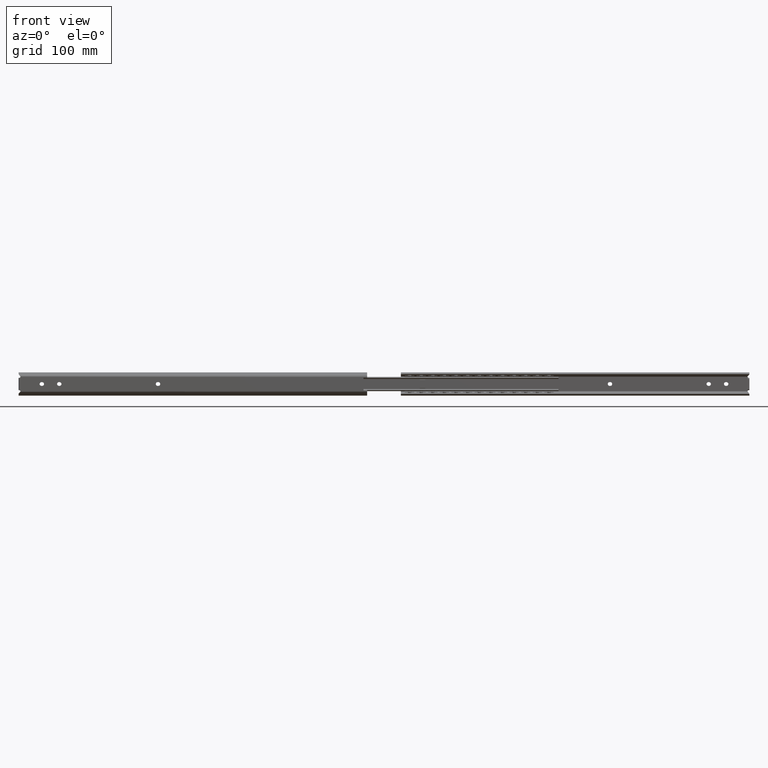
[diagram: clean part render]
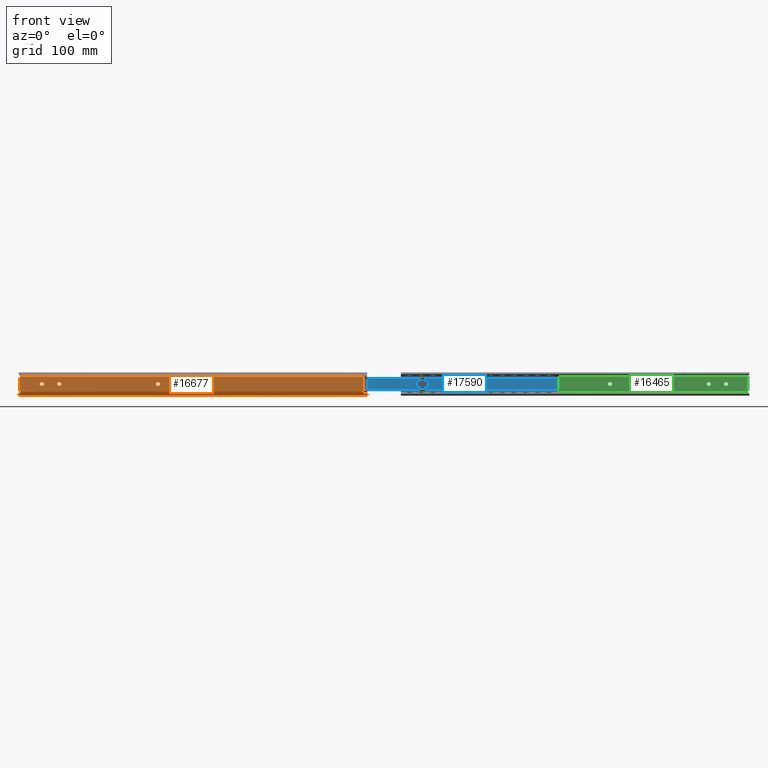
[diagram: same view with three faces highlighted in distinct colors, each labeled with its STEP entity id]
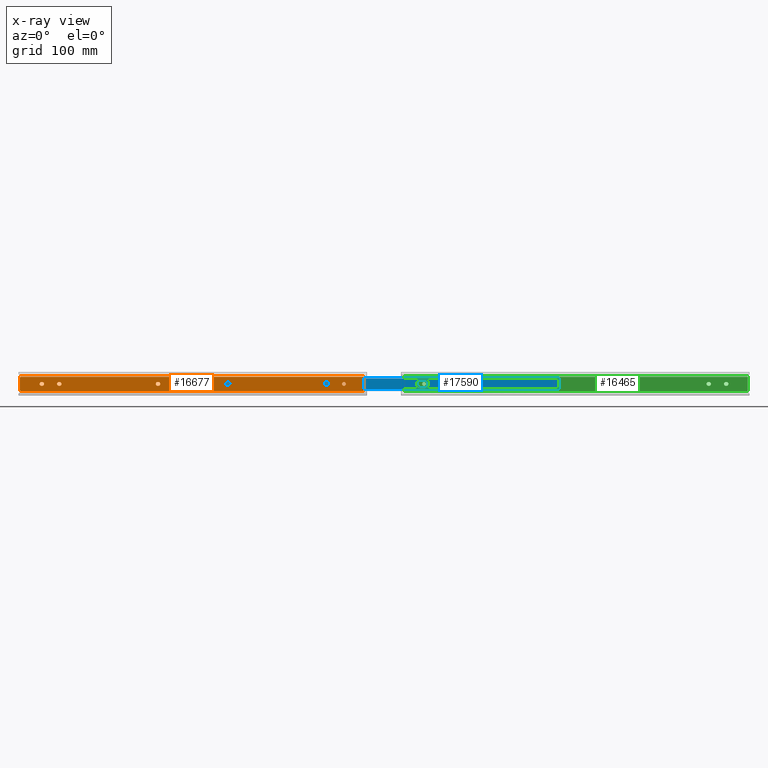
[diagram: x-ray of the same camera — body ghosted, the three highlighted faces saturated]
A machine part, front view with three faces highlighted in distinct colors.
The next image is the same camera in x-ray (body ghosted, the three faces saturated) — at least one of them is partly hidden behind the body in this view.
Their STEP definitions:

[orange] entity #16677 — the highlighted face is a freeform B-spline surface patch.
#13548=CARTESIAN_POINT('',(21.597015677470502,5.204170E-017,-0.097677663329138));
#13549=VERTEX_POINT('',#13548);
#13555=CARTESIAN_POINT('',(20.0,0.0,-1.600000000000000));
#13556=VERTEX_POINT('',#13555);
#13557=CARTESIAN_POINT('',(20.0,0.0,-1.600000000000000));
#13558=CARTESIAN_POINT('',(21.505129706910562,0.0,-1.600000000000000));
#13559=CARTESIAN_POINT('',(21.597015677470502,5.204170E-017,-0.097677663329138));
#13567=(BOUNDED_CURVE()B_SPLINE_CURVE(2,(#13557,#13558,#13559),.UNSPECIFIED.,.F.,.U.)B_SPLINE_CURVE_WITH_KNOTS((3,3),(0.500000000000000,0.739332962226115),.UNSPECIFIED.)CURVE()GEOMETRIC_REPRESENTATION_ITEM()RATIONAL_B_SPLINE_CURVE((1.0,0.719603993301739,0.976072041639226))REPRESENTATION_ITEM(''));
#13568=EDGE_CURVE('',#13556,#13549,#13567,.T.);
#13570=CARTESIAN_POINT('',(18.411184757819200,-2.839428E-017,0.188854775459773));
#13571=VERTEX_POINT('',#13570);
#13572=CARTESIAN_POINT('',(18.411184757819200,-2.839428E-017,0.188854775459773));
#13573=CARTESIAN_POINT('',(18.399999999999999,0.0,0.094758591452110));
#13574=CARTESIAN_POINT('',(18.399999999999999,0.0,0.0));
#13575=CARTESIAN_POINT('',(18.399999999999991,0.0,-1.600000000000000));
#13576=CARTESIAN_POINT('',(20.0,0.0,-1.600000000000000));
#13584=(BOUNDED_CURVE()B_SPLINE_CURVE(2,(#13572,#13573,#13574,#13575,#13576),.UNSPECIFIED.,.F.,.U.)B_SPLINE_CURVE_WITH_KNOTS((3,2,3),(0.229562473513738,0.250000000000000,0.500000000000000),.UNSPECIFIED.)CURVE()GEOMETRIC_REPRESENTATION_ITEM()RATIONAL_B_SPLINE_CURVE((0.956026754184150,0.976055948331414,1.0,0.707106781186548,1.0))REPRESENTATION_ITEM(''));
#13585=EDGE_CURVE('',#13571,#13556,#13584,.T.);
#13629=CARTESIAN_POINT('',(20.0,0.0,1.600000000000000));
#13630=VERTEX_POINT('',#13629);
#13631=CARTESIAN_POINT('',(20.0,0.0,1.600000000000000));
#13632=CARTESIAN_POINT('',(18.578920758493954,0.0,1.599999999999999));
#13633=CARTESIAN_POINT('',(18.411184757819203,-2.839428E-017,0.188854775459773));
#13641=(BOUNDED_CURVE()B_SPLINE_CURVE(2,(#13631,#13632,#13633),.UNSPECIFIED.,.F.,.U.)B_SPLINE_CURVE_WITH_KNOTS((3,3),(0.0,0.229562473513738),.UNSPECIFIED.)CURVE()GEOMETRIC_REPRESENTATION_ITEM()RATIONAL_B_SPLINE_CURVE((1.0,0.731050832855133,0.956026754184150))REPRESENTATION_ITEM(''));
#13642=EDGE_CURVE('',#13630,#13571,#13641,.T.);
#13644=CARTESIAN_POINT('',(21.597015677470502,5.204170E-017,-0.097677663329138));
#13645=CARTESIAN_POINT('',(21.600000000000005,0.0,-0.048884421351315));
#13646=CARTESIAN_POINT('',(21.600000000000001,0.0,0.0));
#13647=CARTESIAN_POINT('',(21.600000000000005,0.0,1.600000000000000));
#13648=CARTESIAN_POINT('',(20.0,0.0,1.600000000000000));
#13656=(BOUNDED_CURVE()B_SPLINE_CURVE(2,(#13644,#13645,#13646,#13647,#13648),.UNSPECIFIED.,.F.,.U.)B_SPLINE_CURVE_WITH_KNOTS((3,2,3),(0.739332962226115,0.750000000000000,1.0),.UNSPECIFIED.)CURVE()GEOMETRIC_REPRESENTATION_ITEM()RATIONAL_B_SPLINE_CURVE((0.976072041639224,0.987502787884808,1.0,0.707106781186548,1.0))REPRESENTATION_ITEM(''));
#13657=EDGE_CURVE('',#13549,#13630,#13656,.T.);
#13692=CARTESIAN_POINT('',(35.299999999999997,8.526513E-014,-1.600000000000080));
#13693=VERTEX_POINT('',#13692);
#13699=CARTESIAN_POINT('',(34.700000000000003,0.0,-1.600000000000000));
#13700=VERTEX_POINT('',#13699);
#13701=CARTESIAN_POINT('',(34.700000000000003,0.0,-1.600000000000000));
#13702=CARTESIAN_POINT('',(35.299999999999997,8.526513E-014,-1.600000000000080));
#13703=QUASI_UNIFORM_CURVE('',1,(#13701,#13702),.UNSPECIFIED.,.F.,.U.);
#13704=EDGE_CURVE('',#13700,#13693,#13703,.T.);
#13750=CARTESIAN_POINT('',(34.700000000000003,0.0,1.600000000000025));
#13751=VERTEX_POINT('',#13750);
#13752=CARTESIAN_POINT('',(34.700000000000003,0.0,1.600000000000000));
#13753=CARTESIAN_POINT('',(33.100000000000009,0.0,1.600000000000000));
#13754=CARTESIAN_POINT('',(33.100000000000001,0.0,0.0));
#13755=CARTESIAN_POINT('',(33.100000000000009,0.0,-1.600000000000000));
#13756=CARTESIAN_POINT('',(34.700000000000003,0.0,-1.600000000000000));
#13764=(BOUNDED_CURVE()B_SPLINE_CURVE(2,(#13752,#13753,#13754,#13755,#13756),.UNSPECIFIED.,.F.,.U.)B_SPLINE_CURVE_WITH_KNOTS((3,2,3),(0.0,0.500000000000000,1.0),.UNSPECIFIED.)CURVE()GEOMETRIC_REPRESENTATION_ITEM()RATIONAL_B_SPLINE_CURVE((1.0,0.707106781186548,1.0,0.707106781186548,1.0))REPRESENTATION_ITEM(''));
#13765=EDGE_CURVE('',#13751,#13700,#13764,.T.);
#13788=CARTESIAN_POINT('',(35.299999999999997,0.0,1.600000000000025));
#13789=VERTEX_POINT('',#13788);
#13790=CARTESIAN_POINT('',(35.299999999999997,0.0,1.600000000000025));
#13791=CARTESIAN_POINT('',(34.700000000000003,0.0,1.600000000000025));
#13792=QUASI_UNIFORM_CURVE('',1,(#13790,#13791),.UNSPECIFIED.,.F.,.U.);
#13793=EDGE_CURVE('',#13789,#13751,#13792,.T.);
#13837=CARTESIAN_POINT('',(35.299999999999997,8.526513E-014,-1.600000000000080));
#13838=CARTESIAN_POINT('',(36.900000000000006,0.0,-1.600000000000000));
#13839=CARTESIAN_POINT('',(36.899999999999999,0.0,0.0));
#13840=CARTESIAN_POINT('',(36.900000000000006,0.0,1.600000000000000));
#13841=CARTESIAN_POINT('',(35.299999999999997,0.0,1.600000000000000));
#13849=(BOUNDED_CURVE()B_SPLINE_CURVE(2,(#13837,#13838,#13839,#13840,#13841),.UNSPECIFIED.,.F.,.U.)B_SPLINE_CURVE_WITH_KNOTS((3,2,3),(0.0,0.500000000000000,1.0),.UNSPECIFIED.)CURVE()GEOMETRIC_REPRESENTATION_ITEM()RATIONAL_B_SPLINE_CURVE((1.0,0.707106781186548,1.0,0.707106781186548,1.0))REPRESENTATION_ITEM(''));
#13850=EDGE_CURVE('',#13693,#13789,#13849,.T.);
#13870=CARTESIAN_POINT('',(120.300000000000000,8.526513E-014,-1.600000000000080));
#13871=VERTEX_POINT('',#13870);
#13877=CARTESIAN_POINT('',(119.700000000000000,0.0,-1.600000000000000));
#13878=VERTEX_POINT('',#13877);
#13879=CARTESIAN_POINT('',(119.700000000000000,0.0,-1.600000000000000));
#13880=CARTESIAN_POINT('',(120.300000000000000,8.526513E-014,-1.600000000000080));
#13881=QUASI_UNIFORM_CURVE('',1,(#13879,#13880),.UNSPECIFIED.,.F.,.U.);
#13882=EDGE_CURVE('',#13878,#13871,#13881,.T.);
#13928=CARTESIAN_POINT('',(119.700000000000000,0.0,1.600000000000025));
#13929=VERTEX_POINT('',#13928);
#13930=CARTESIAN_POINT('',(119.700000000000000,0.0,1.600000000000000));
#13931=CARTESIAN_POINT('',(118.099999999999980,0.0,1.600000000000000));
#13932=CARTESIAN_POINT('',(118.099999999999990,0.0,0.0));
#13933=CARTESIAN_POINT('',(118.099999999999980,0.0,-1.600000000000000));
#13934=CARTESIAN_POINT('',(119.700000000000000,0.0,-1.600000000000000));
#13942=(BOUNDED_CURVE()B_SPLINE_CURVE(2,(#13930,#13931,#13932,#13933,#13934),.UNSPECIFIED.,.F.,.U.)B_SPLINE_CURVE_WITH_KNOTS((3,2,3),(0.0,0.500000000000000,1.0),.UNSPECIFIED.)CURVE()GEOMETRIC_REPRESENTATION_ITEM()RATIONAL_B_SPLINE_CURVE((1.0,0.707106781186548,1.0,0.707106781186548,1.0))REPRESENTATION_ITEM(''));
#13943=EDGE_CURVE('',#13929,#13878,#13942,.T.);
#13966=CARTESIAN_POINT('',(120.300000000000000,0.0,1.600000000000025));
#13967=VERTEX_POINT('',#13966);
#13968=CARTESIAN_POINT('',(120.300000000000000,0.0,1.600000000000025));
#13969=CARTESIAN_POINT('',(119.700000000000000,0.0,1.600000000000025));
#13970=QUASI_UNIFORM_CURVE('',1,(#13968,#13969),.UNSPECIFIED.,.F.,.U.);
#13971=EDGE_CURVE('',#13967,#13929,#13970,.T.);
#14015=CARTESIAN_POINT('',(120.300000000000000,0.0,-1.600000000000000));
#14016=CARTESIAN_POINT('',(121.900000000000010,0.0,-1.600000000000000));
#14017=CARTESIAN_POINT('',(121.900000000000010,0.0,0.0));
#14018=CARTESIAN_POINT('',(121.900000000000010,0.0,1.600000000000000));
#14019=CARTESIAN_POINT('',(120.300000000000000,0.0,1.600000000000000));
#14027=(BOUNDED_CURVE()B_SPLINE_CURVE(2,(#14015,#14016,#14017,#14018,#14019),.UNSPECIFIED.,.F.,.U.)B_SPLINE_CURVE_WITH_KNOTS((3,2,3),(0.0,0.500000000000000,1.0),.UNSPECIFIED.)CURVE()GEOMETRIC_REPRESENTATION_ITEM()RATIONAL_B_SPLINE_CURVE((1.0,0.707106781186548,1.0,0.707106781186548,1.0))REPRESENTATION_ITEM(''));
#14028=EDGE_CURVE('',#13871,#13967,#14027,.T.);
#14048=CARTESIAN_POINT('',(180.300000000000010,8.526513E-014,-1.600000000000000));
#14049=VERTEX_POINT('',#14048);
#14055=CARTESIAN_POINT('',(179.699999999999990,0.0,-1.600000000000000));
#14056=VERTEX_POINT('',#14055);
#14057=CARTESIAN_POINT('',(179.699999999999990,0.0,-1.600000000000000));
#14058=CARTESIAN_POINT('',(180.300000000000010,8.526513E-014,-1.600000000000000));
#14059=QUASI_UNIFORM_CURVE('',1,(#14057,#14058),.UNSPECIFIED.,.F.,.U.);
#14060=EDGE_CURVE('',#14056,#14049,#14059,.T.);
#14106=CARTESIAN_POINT('',(179.699999999999990,0.0,1.599999999999910));
#14107=VERTEX_POINT('',#14106);
#14108=CARTESIAN_POINT('',(179.699999999999990,0.0,1.600000000000000));
#14109=CARTESIAN_POINT('',(178.099999999999970,0.0,1.600000000000000));
#14110=CARTESIAN_POINT('',(178.099999999999990,0.0,0.0));
#14111=CARTESIAN_POINT('',(178.099999999999970,0.0,-1.600000000000000));
#14112=CARTESIAN_POINT('',(179.699999999999990,0.0,-1.600000000000000));
#14120=(BOUNDED_CURVE()B_SPLINE_CURVE(2,(#14108,#14109,#14110,#14111,#14112),.UNSPECIFIED.,.F.,.U.)B_SPLINE_CURVE_WITH_KNOTS((3,2,3),(0.0,0.500000000000000,1.0),.UNSPECIFIED.)CURVE()GEOMETRIC_REPRESENTATION_ITEM()RATIONAL_B_SPLINE_CURVE((1.0,0.707106781186548,1.0,0.707106781186548,1.0))REPRESENTATION_ITEM(''));
#14121=EDGE_CURVE('',#14107,#14056,#14120,.T.);
#14144=CARTESIAN_POINT('',(180.300000000000010,0.0,1.599999999999910));
#14145=VERTEX_POINT('',#14144);
#14146=CARTESIAN_POINT('',(180.300000000000010,0.0,1.599999999999910));
#14147=CARTESIAN_POINT('',(179.699999999999990,0.0,1.599999999999910));
#14148=QUASI_UNIFORM_CURVE('',1,(#14146,#14147),.UNSPECIFIED.,.F.,.U.);
#14149=EDGE_CURVE('',#14145,#14107,#14148,.T.);
#14193=CARTESIAN_POINT('',(180.300000000000010,0.0,-1.600000000000000));
#14194=CARTESIAN_POINT('',(181.899999999999980,0.0,-1.600000000000000));
#14195=CARTESIAN_POINT('',(181.900000000000010,0.0,0.0));
#14196=CARTESIAN_POINT('',(181.899999999999980,0.0,1.600000000000000));
#14197=CARTESIAN_POINT('',(180.300000000000010,0.0,1.600000000000000));
#14205=(BOUNDED_CURVE()B_SPLINE_CURVE(2,(#14193,#14194,#14195,#14196,#14197),.UNSPECIFIED.,.F.,.U.)B_SPLINE_CURVE_WITH_KNOTS((3,2,3),(0.0,0.500000000000000,1.0),.UNSPECIFIED.)CURVE()GEOMETRIC_REPRESENTATION_ITEM()RATIONAL_B_SPLINE_CURVE((1.0,0.707106781186548,1.0,0.707106781186548,1.0))REPRESENTATION_ITEM(''));
#14206=EDGE_CURVE('',#14049,#14145,#14205,.T.);
#14226=CARTESIAN_POINT('',(265.300000000000010,8.526513E-014,-1.600000000000000));
#14227=VERTEX_POINT('',#14226);
#14233=CARTESIAN_POINT('',(264.699999999999990,0.0,-1.600000000000025));
#14234=VERTEX_POINT('',#14233);
#14235=CARTESIAN_POINT('',(264.699999999999990,0.0,-1.600000000000025));
#14236=CARTESIAN_POINT('',(265.300000000000010,8.526513E-014,-1.600000000000000));
#14237=QUASI_UNIFORM_CURVE('',1,(#14235,#14236),.UNSPECIFIED.,.F.,.U.);
#14238=EDGE_CURVE('',#14234,#14227,#14237,.T.);
#14284=CARTESIAN_POINT('',(264.699999999999990,0.0,1.599999999999910));
#14285=VERTEX_POINT('',#14284);
#14286=CARTESIAN_POINT('',(264.699999999999990,0.0,1.600000000000025));
#14287=CARTESIAN_POINT('',(263.099999999999970,0.0,1.600000000000026));
#14288=CARTESIAN_POINT('',(263.100000000000020,0.0,0.0));
#14289=CARTESIAN_POINT('',(263.099999999999970,0.0,-1.600000000000026));
#14290=CARTESIAN_POINT('',(264.699999999999990,0.0,-1.600000000000025));
#14298=(BOUNDED_CURVE()B_SPLINE_CURVE(2,(#14286,#14287,#14288,#14289,#14290),.UNSPECIFIED.,.F.,.U.)B_SPLINE_CURVE_WITH_KNOTS((3,2,3),(0.0,0.500000000000000,1.0),.UNSPECIFIED.)CURVE()GEOMETRIC_REPRESENTATION_ITEM()RATIONAL_B_SPLINE_CURVE((1.0,0.707106781186547,1.0,0.707106781186547,1.0))REPRESENTATION_ITEM(''));
#14299=EDGE_CURVE('',#14285,#14234,#14298,.T.);
#14322=CARTESIAN_POINT('',(265.300000000000010,0.0,1.599999999999910));
#14323=VERTEX_POINT('',#14322);
#14324=CARTESIAN_POINT('',(265.300000000000010,0.0,1.599999999999910));
#14325=CARTESIAN_POINT('',(264.699999999999990,0.0,1.599999999999910));
#14326=QUASI_UNIFORM_CURVE('',1,(#14324,#14325),.UNSPECIFIED.,.F.,.U.);
#14327=EDGE_CURVE('',#14323,#14285,#14326,.T.);
#14371=CARTESIAN_POINT('',(265.300000000000010,0.0,-1.600000000000025));
#14372=CARTESIAN_POINT('',(266.899999999999980,0.0,-1.600000000000026));
#14373=CARTESIAN_POINT('',(266.899999999999980,0.0,0.0));
#14374=CARTESIAN_POINT('',(266.899999999999980,0.0,1.600000000000026));
#14375=CARTESIAN_POINT('',(265.300000000000010,0.0,1.600000000000025));
#14383=(BOUNDED_CURVE()B_SPLINE_CURVE(2,(#14371,#14372,#14373,#14374,#14375),.UNSPECIFIED.,.F.,.U.)B_SPLINE_CURVE_WITH_KNOTS((3,2,3),(0.0,0.500000000000000,1.0),.UNSPECIFIED.)CURVE()GEOMETRIC_REPRESENTATION_ITEM()RATIONAL_B_SPLINE_CURVE((1.0,0.707106781186547,1.0,0.707106781186547,1.0))REPRESENTATION_ITEM(''));
#14384=EDGE_CURVE('',#14227,#14323,#14383,.T.);
#14404=CARTESIAN_POINT('',(280.300000000000010,8.526513E-014,-1.600000000000000));
#14405=VERTEX_POINT('',#14404);
#14411=CARTESIAN_POINT('',(279.699999999999990,0.0,-1.600000000000025));
#14412=VERTEX_POINT('',#14411);
#14413=CARTESIAN_POINT('',(279.699999999999990,0.0,-1.600000000000025));
#14414=CARTESIAN_POINT('',(280.300000000000010,8.526513E-014,-1.600000000000000));
#14415=QUASI_UNIFORM_CURVE('',1,(#14413,#14414),.UNSPECIFIED.,.F.,.U.);
#14416=EDGE_CURVE('',#14412,#14405,#14415,.T.);
#14462=CARTESIAN_POINT('',(279.699999999999990,0.0,1.599999999999910));
#14463=VERTEX_POINT('',#14462);
#14464=CARTESIAN_POINT('',(279.699999999999990,0.0,1.600000000000025));
#14465=CARTESIAN_POINT('',(278.099999999999910,0.0,1.600000000000026));
#14466=CARTESIAN_POINT('',(278.100000000000020,0.0,0.0));
#14467=CARTESIAN_POINT('',(278.099999999999910,0.0,-1.600000000000026));
#14468=CARTESIAN_POINT('',(279.699999999999990,0.0,-1.600000000000025));
#14476=(BOUNDED_CURVE()B_SPLINE_CURVE(2,(#14464,#14465,#14466,#14467,#14468),.UNSPECIFIED.,.F.,.U.)B_SPLINE_CURVE_WITH_KNOTS((3,2,3),(0.0,0.500000000000000,1.0),.UNSPECIFIED.)CURVE()GEOMETRIC_REPRESENTATION_ITEM()RATIONAL_B_SPLINE_CURVE((1.0,0.707106781186547,1.0,0.707106781186547,1.0))REPRESENTATION_ITEM(''));
#14477=EDGE_CURVE('',#14463,#14412,#14476,.T.);
#14500=CARTESIAN_POINT('',(280.300000000000010,0.0,1.599999999999910));
#14501=VERTEX_POINT('',#14500);
#14502=CARTESIAN_POINT('',(280.300000000000010,0.0,1.599999999999910));
#14503=CARTESIAN_POINT('',(279.699999999999990,0.0,1.599999999999910));
#14504=QUASI_UNIFORM_CURVE('',1,(#14502,#14503),.UNSPECIFIED.,.F.,.U.);
#14505=EDGE_CURVE('',#14501,#14463,#14504,.T.);
#14549=CARTESIAN_POINT('',(280.300000000000010,0.0,-1.600000000000025));
#14550=CARTESIAN_POINT('',(281.900000000000090,0.0,-1.600000000000026));
#14551=CARTESIAN_POINT('',(281.899999999999980,0.0,0.0));
#14552=CARTESIAN_POINT('',(281.900000000000090,0.0,1.600000000000026));
#14553=CARTESIAN_POINT('',(280.300000000000010,0.0,1.600000000000025));
#14561=(BOUNDED_CURVE()B_SPLINE_CURVE(2,(#14549,#14550,#14551,#14552,#14553),.UNSPECIFIED.,.F.,.U.)B_SPLINE_CURVE_WITH_KNOTS((3,2,3),(0.0,0.500000000000000,1.0),.UNSPECIFIED.)CURVE()GEOMETRIC_REPRESENTATION_ITEM()RATIONAL_B_SPLINE_CURVE((1.0,0.707106781186547,1.0,0.707106781186547,1.0))REPRESENTATION_ITEM(''));
#14562=EDGE_CURVE('',#14405,#14501,#14561,.T.);
#14621=CARTESIAN_POINT('',(299.0,0.0,-5.383484861008910));
#14622=VERTEX_POINT('',#14621);
#14634=CARTESIAN_POINT('',(299.0,0.0,5.383484861008820));
#14635=VERTEX_POINT('',#14634);
#14636=CARTESIAN_POINT('',(299.0,0.0,5.383484861008820));
#14637=CARTESIAN_POINT('',(299.0,0.0,-5.383484861008910));
#14638=QUASI_UNIFORM_CURVE('',1,(#14636,#14637),.UNSPECIFIED.,.F.,.U.);
#14639=EDGE_CURVE('',#14635,#14622,#14638,.T.);
#15045=CARTESIAN_POINT('',(298.424053688014000,0.0,6.081989000000000));
#15046=VERTEX_POINT('',#15045);
#15047=CARTESIAN_POINT('',(298.424053688014110,0.0,6.081989000000008));
#15048=CARTESIAN_POINT('',(298.534727763389750,0.0,5.586546312725798));
#15049=CARTESIAN_POINT('',(299.0,0.0,5.383484861008834));
#15057=(BOUNDED_CURVE()B_SPLINE_CURVE(2,(#15047,#15048,#15049),.UNSPECIFIED.,.F.,.U.)CURVE()GEOMETRIC_REPRESENTATION_ITEM()QUASI_UNIFORM_CURVE()RATIONAL_B_SPLINE_CURVE((1.0,0.891680690258847,1.0))REPRESENTATION_ITEM(''));
#15058=EDGE_CURVE('',#15046,#14635,#15057,.T.);
#15259=CARTESIAN_POINT('',(298.424053688014000,0.0,-6.081989000000000));
#15260=VERTEX_POINT('',#15259);
#15261=CARTESIAN_POINT('',(299.0,0.0,-5.383484861008933));
#15262=CARTESIAN_POINT('',(298.534727763389750,0.0,-5.586546312725871));
#15263=CARTESIAN_POINT('',(298.424053688014110,0.0,-6.081989000000013));
#15271=(BOUNDED_CURVE()B_SPLINE_CURVE(2,(#15261,#15262,#15263),.UNSPECIFIED.,.F.,.U.)CURVE()GEOMETRIC_REPRESENTATION_ITEM()QUASI_UNIFORM_CURVE()RATIONAL_B_SPLINE_CURVE((1.0,0.891680690258868,1.0))REPRESENTATION_ITEM(''));
#15272=EDGE_CURVE('',#14622,#15260,#15271,.T.);
#16590=CARTESIAN_POINT('',(3.100000000000000,7.958044E-014,-6.081989000000000));
#16591=VERTEX_POINT('',#16590);
#16592=CARTESIAN_POINT('',(298.424053688014000,0.0,-6.081989000000000));
#16593=CARTESIAN_POINT('',(3.100000000000000,7.958044E-014,-6.081989000000000));
#16594=QUASI_UNIFORM_CURVE('',1,(#16592,#16593),.UNSPECIFIED.,.F.,.U.);
#16595=EDGE_CURVE('',#15260,#16591,#16594,.T.);
#16618=CARTESIAN_POINT('',(-11.680204426488400,8.526513E-014,-6.689579519878856));
#16619=CARTESIAN_POINT('',(-11.680204426488400,8.526513E-014,6.689579084861103));
#16620=CARTESIAN_POINT('',(313.780212363144930,8.526513E-014,-6.689579519878856));
#16621=CARTESIAN_POINT('',(313.780212363144930,8.526513E-014,6.689579084861103));
#16622=B_SPLINE_SURFACE_WITH_KNOTS('',1,1,((#16618,#16620),(#16619,#16621)),.UNSPECIFIED.,.F.,.F.,.U.,(2,2),(2,2),(0.0,13.379158604739960),(0.0,325.460416789633310),.UNSPECIFIED.);
#16623=ORIENTED_EDGE('',*,*,#15058,.T.);
#16624=ORIENTED_EDGE('',*,*,#14639,.T.);
#16625=ORIENTED_EDGE('',*,*,#15272,.T.);
#16626=ORIENTED_EDGE('',*,*,#16595,.T.);
#16627=CARTESIAN_POINT('',(3.100000000000000,-9.063930E-014,6.081989000000000));
#16628=VERTEX_POINT('',#16627);
#16629=CARTESIAN_POINT('',(3.100000000000000,-9.063930E-014,6.081989000000000));
#16630=CARTESIAN_POINT('',(3.100000000000000,7.958044E-014,-6.081989000000000));
#16631=QUASI_UNIFORM_CURVE('',1,(#16629,#16630),.UNSPECIFIED.,.F.,.U.);
#16632=EDGE_CURVE('',#16628,#16591,#16631,.T.);
#16633=ORIENTED_EDGE('',*,*,#16632,.F.);
#16634=CARTESIAN_POINT('',(298.424053688014000,0.0,6.081989000000000));
#16635=CARTESIAN_POINT('',(3.100000000000000,-9.063930E-014,6.081989000000000));
#16636=QUASI_UNIFORM_CURVE('',1,(#16634,#16635),.UNSPECIFIED.,.F.,.U.);
#16637=EDGE_CURVE('',#15046,#16628,#16636,.T.);
#16638=ORIENTED_EDGE('',*,*,#16637,.F.);
#16639=EDGE_LOOP('',(#16623,#16624,#16625,#16626,#16633,#16638));
#16640=FACE_OUTER_BOUND('',#16639,.T.);
#16641=ORIENTED_EDGE('',*,*,#13850,.T.);
#16642=ORIENTED_EDGE('',*,*,#13793,.T.);
#16643=ORIENTED_EDGE('',*,*,#13765,.T.);
#16644=ORIENTED_EDGE('',*,*,#13704,.T.);
#16645=EDGE_LOOP('',(#16641,#16642,#16643,#16644));
#16646=FACE_BOUND('',#16645,.T.);
#16647=ORIENTED_EDGE('',*,*,#14028,.T.);
#16648=ORIENTED_EDGE('',*,*,#13971,.T.);
#16649=ORIENTED_EDGE('',*,*,#13943,.T.);
#16650=ORIENTED_EDGE('',*,*,#13882,.T.);
#16651=EDGE_LOOP('',(#16647,#16648,#16649,#16650));
#16652=FACE_BOUND('',#16651,.T.);
#16653=ORIENTED_EDGE('',*,*,#14206,.T.);
#16654=ORIENTED_EDGE('',*,*,#14149,.T.);
#16655=ORIENTED_EDGE('',*,*,#14121,.T.);
#16656=ORIENTED_EDGE('',*,*,#14060,.T.);
#16657=EDGE_LOOP('',(#16653,#16654,#16655,#16656));
#16658=FACE_BOUND('',#16657,.T.);
#16659=ORIENTED_EDGE('',*,*,#14384,.T.);
#16660=ORIENTED_EDGE('',*,*,#14327,.T.);
#16661=ORIENTED_EDGE('',*,*,#14299,.T.);
#16662=ORIENTED_EDGE('',*,*,#14238,.T.);
#16663=EDGE_LOOP('',(#16659,#16660,#16661,#16662));
#16664=FACE_BOUND('',#16663,.T.);
#16665=ORIENTED_EDGE('',*,*,#14562,.T.);
#16666=ORIENTED_EDGE('',*,*,#14505,.T.);
#16667=ORIENTED_EDGE('',*,*,#14477,.T.);
#16668=ORIENTED_EDGE('',*,*,#14416,.T.);
#16669=EDGE_LOOP('',(#16665,#16666,#16667,#16668));
#16670=FACE_BOUND('',#16669,.T.);
#16671=ORIENTED_EDGE('',*,*,#13568,.T.);
#16672=ORIENTED_EDGE('',*,*,#13657,.T.);
#16673=ORIENTED_EDGE('',*,*,#13642,.T.);
#16674=ORIENTED_EDGE('',*,*,#13585,.T.);
#16675=EDGE_LOOP('',(#16671,#16672,#16673,#16674));
#16676=FACE_BOUND('',#16675,.T.);
#16677=ADVANCED_FACE('',(#16640,#16646,#16652,#16658,#16664,#16670,#16676),#16622,.T.);

[blue] entity #17590 — the highlighted face is a freeform B-spline surface patch.
#17020=CARTESIAN_POINT('',(-161.300000000000010,-9.199999999999999,-4.641039999999910));
#17021=VERTEX_POINT('',#17020);
#17027=CARTESIAN_POINT('',(-160.099999999999990,-9.199999999999999,-4.300000000000000));
#17028=VERTEX_POINT('',#17027);
#17029=CARTESIAN_POINT('',(-161.300000000000010,-9.199999999999999,-4.641039999999910));
#17030=CARTESIAN_POINT('',(-160.099999999999990,-9.199999999999999,-4.300000000000000));
#17031=QUASI_UNIFORM_CURVE('',1,(#17029,#17030),.UNSPECIFIED.,.F.,.U.);
#17032=EDGE_CURVE('',#17021,#17028,#17031,.T.);
#17056=CARTESIAN_POINT('',(-160.099999999999990,-9.199999999999999,4.300000000000000));
#17057=VERTEX_POINT('',#17056);
#17063=CARTESIAN_POINT('',(-161.300000000000010,-9.199999999999999,4.641040000000000));
#17064=VERTEX_POINT('',#17063);
#17065=CARTESIAN_POINT('',(-160.099999999999990,-9.199999999999999,4.300000000000000));
#17066=CARTESIAN_POINT('',(-161.300000000000010,-9.199999999999999,4.641040000000000));
#17067=QUASI_UNIFORM_CURVE('',1,(#17065,#17066),.UNSPECIFIED.,.F.,.U.);
#17068=EDGE_CURVE('',#17057,#17064,#17067,.T.);
#17090=CARTESIAN_POINT('',(-160.099999999999990,-9.199999999999999,-4.300000000000000));
#17091=CARTESIAN_POINT('',(-160.099999999999990,-9.199999999999999,4.300000000000000));
#17092=QUASI_UNIFORM_CURVE('',1,(#17090,#17091),.UNSPECIFIED.,.F.,.U.);
#17093=EDGE_CURVE('',#17028,#17057,#17092,.T.);
#17282=CARTESIAN_POINT('',(135.699999999999990,-9.200000000000101,4.641040000000000));
#17283=VERTEX_POINT('',#17282);
#17299=CARTESIAN_POINT('',(135.699999999999990,-9.199999999999999,-4.641039999999910));
#17300=VERTEX_POINT('',#17299);
#17301=CARTESIAN_POINT('',(135.699999999999990,-9.199999999999999,-4.641039999999910));
#17302=CARTESIAN_POINT('',(135.699999999999990,-9.200000000000101,4.641040000000000));
#17303=QUASI_UNIFORM_CURVE('',1,(#17301,#17302),.UNSPECIFIED.,.F.,.U.);
#17304=EDGE_CURVE('',#17300,#17283,#17303,.T.);
#17442=CARTESIAN_POINT('',(-161.300000000000010,-9.199999999999999,-4.641039999999910));
#17443=CARTESIAN_POINT('',(135.699999999999990,-9.199999999999999,-4.641039999999910));
#17444=QUASI_UNIFORM_CURVE('',1,(#17442,#17443),.UNSPECIFIED.,.F.,.U.);
#17445=EDGE_CURVE('',#17021,#17300,#17444,.T.);
#17473=CARTESIAN_POINT('',(-176.135152212379890,-9.200000000000101,-5.104679757713797));
#17474=CARTESIAN_POINT('',(-176.135152212379890,-9.200000000000101,5.104679425760839));
#17475=CARTESIAN_POINT('',(150.535157523153800,-9.200000000000101,-5.104679757713797));
#17476=CARTESIAN_POINT('',(150.535157523153800,-9.200000000000101,5.104679425760839));
#17477=B_SPLINE_SURFACE_WITH_KNOTS('',1,1,((#17473,#17475),(#17474,#17476)),.UNSPECIFIED.,.F.,.F.,.U.,(2,2),(2,2),(0.0,10.209359183474641),(0.0,326.670309735533690),.UNSPECIFIED.);
#17478=ORIENTED_EDGE('',*,*,#17445,.T.);
#17479=ORIENTED_EDGE('',*,*,#17304,.T.);
#17480=CARTESIAN_POINT('',(-161.300000000000010,-9.199999999999999,4.641040000000000));
#17481=CARTESIAN_POINT('',(135.699999999999990,-9.200000000000101,4.641040000000000));
#17482=QUASI_UNIFORM_CURVE('',1,(#17480,#17481),.UNSPECIFIED.,.F.,.U.);
#17483=EDGE_CURVE('',#17064,#17283,#17482,.T.);
#17484=ORIENTED_EDGE('',*,*,#17483,.F.);
#17485=ORIENTED_EDGE('',*,*,#17068,.F.);
#17486=ORIENTED_EDGE('',*,*,#17093,.F.);
#17487=ORIENTED_EDGE('',*,*,#17032,.F.);
#17488=EDGE_LOOP('',(#17478,#17479,#17484,#17485,#17486,#17487));
#17489=FACE_OUTER_BOUND('',#17488,.T.);
#17490=CARTESIAN_POINT('',(20.300000000000299,-9.200000000000140,-3.649999999999920));
#17491=VERTEX_POINT('',#17490);
#17492=CARTESIAN_POINT('',(20.300000000000299,-9.200000000000140,3.650000000000000));
#17493=VERTEX_POINT('',#17492);
#17494=CARTESIAN_POINT('',(20.300000000000299,-9.200000000000140,-3.649999999999920));
#17495=CARTESIAN_POINT('',(23.950000000000294,-9.200000000000140,-3.650000000000000));
#17496=CARTESIAN_POINT('',(23.950000000000301,-9.200000000000140,0.0));
#17497=CARTESIAN_POINT('',(23.950000000000294,-9.200000000000140,3.650000000000000));
#17498=CARTESIAN_POINT('',(20.300000000000299,-9.200000000000140,3.650000000000000));
#17506=(BOUNDED_CURVE()B_SPLINE_CURVE(2,(#17494,#17495,#17496,#17497,#17498),.UNSPECIFIED.,.F.,.U.)B_SPLINE_CURVE_WITH_KNOTS((3,2,3),(0.0,0.500000000000000,1.0),.UNSPECIFIED.)CURVE()GEOMETRIC_REPRESENTATION_ITEM()RATIONAL_B_SPLINE_CURVE((1.0,0.707106781186547,1.0,0.707106781186547,1.0))REPRESENTATION_ITEM(''));
#17507=EDGE_CURVE('',#17491,#17493,#17506,.T.);
#17508=ORIENTED_EDGE('',*,*,#17507,.F.);
#17509=CARTESIAN_POINT('',(17.100000000000300,-9.200000000000140,-3.649999999999920));
#17510=VERTEX_POINT('',#17509);
#17511=CARTESIAN_POINT('',(17.100000000000300,-9.200000000000140,-3.649999999999920));
#17512=CARTESIAN_POINT('',(20.300000000000299,-9.200000000000140,-3.649999999999920));
#17513=QUASI_UNIFORM_CURVE('',1,(#17511,#17512),.UNSPECIFIED.,.F.,.U.);
#17514=EDGE_CURVE('',#17510,#17491,#17513,.T.);
#17515=ORIENTED_EDGE('',*,*,#17514,.F.);
#17516=CARTESIAN_POINT('',(17.100000000000001,-9.200000000000101,3.650000000000000));
#17517=VERTEX_POINT('',#17516);
#17518=CARTESIAN_POINT('',(17.100000000000001,-9.200000000000101,3.650000000000000));
#17519=CARTESIAN_POINT('',(13.450000000000299,-9.200000000000140,3.650000000000000));
#17520=CARTESIAN_POINT('',(13.450000000000299,-9.200000000000140,0.0));
#17521=CARTESIAN_POINT('',(13.450000000000299,-9.200000000000140,-3.650000000000000));
#17522=CARTESIAN_POINT('',(17.100000000000300,-9.200000000000140,-3.649999999999920));
#17530=(BOUNDED_CURVE()B_SPLINE_CURVE(2,(#17518,#17519,#17520,#17521,#17522),.UNSPECIFIED.,.F.,.U.)B_SPLINE_CURVE_WITH_KNOTS((3,2,3),(0.0,0.500000000000000,1.0),.UNSPECIFIED.)CURVE()GEOMETRIC_REPRESENTATION_ITEM()RATIONAL_B_SPLINE_CURVE((1.0,0.707106781186547,1.0,0.707106781186547,1.0))REPRESENTATION_ITEM(''));
#17531=EDGE_CURVE('',#17517,#17510,#17530,.T.);
#17532=ORIENTED_EDGE('',*,*,#17531,.F.);
#17533=CARTESIAN_POINT('',(20.300000000000299,-9.200000000000140,3.650000000000000));
#17534=CARTESIAN_POINT('',(17.100000000000001,-9.200000000000101,3.650000000000000));
#17535=QUASI_UNIFORM_CURVE('',1,(#17533,#17534),.UNSPECIFIED.,.F.,.U.);
#17536=EDGE_CURVE('',#17493,#17517,#17535,.T.);
#17537=ORIENTED_EDGE('',*,*,#17536,.F.);
#17538=EDGE_LOOP('',(#17508,#17515,#17532,#17537));
#17539=FACE_BOUND('',#17538,.T.);
#17540=CARTESIAN_POINT('',(-45.700000000000003,-9.200000000000140,-3.650000000000000));
#17541=VERTEX_POINT('',#17540);
#17542=CARTESIAN_POINT('',(-45.700000000000003,-9.200000000000140,3.650000000000000));
#17543=VERTEX_POINT('',#17542);
#17544=CARTESIAN_POINT('',(-45.700000000000003,-9.200000000000140,-3.650000000000000));
#17545=CARTESIAN_POINT('',(-42.049999999999997,-9.200000000000140,-3.650000000000000));
#17546=CARTESIAN_POINT('',(-42.049999999999997,-9.200000000000140,0.0));
#17547=CARTESIAN_POINT('',(-42.049999999999997,-9.200000000000140,3.650000000000000));
#17548=CARTESIAN_POINT('',(-45.700000000000003,-9.200000000000140,3.650000000000000));
#17556=(BOUNDED_CURVE()B_SPLINE_CURVE(2,(#17544,#17545,#17546,#17547,#17548),.UNSPECIFIED.,.F.,.U.)B_SPLINE_CURVE_WITH_KNOTS((3,2,3),(0.0,0.500000000000000,1.0),.UNSPECIFIED.)CURVE()GEOMETRIC_REPRESENTATION_ITEM()RATIONAL_B_SPLINE_CURVE((1.0,0.707106781186547,1.0,0.707106781186547,1.0))REPRESENTATION_ITEM(''));
#17557=EDGE_CURVE('',#17541,#17543,#17556,.T.);
#17558=ORIENTED_EDGE('',*,*,#17557,.F.);
#17559=CARTESIAN_POINT('',(-48.899999999999999,-9.200000000000140,-3.650000000000000));
#17560=VERTEX_POINT('',#17559);
#17561=CARTESIAN_POINT('',(-48.899999999999999,-9.200000000000140,-3.650000000000000));
#17562=CARTESIAN_POINT('',(-45.700000000000003,-9.200000000000140,-3.650000000000000));
#17563=QUASI_UNIFORM_CURVE('',1,(#17561,#17562),.UNSPECIFIED.,.F.,.U.);
#17564=EDGE_CURVE('',#17560,#17541,#17563,.T.);
#17565=ORIENTED_EDGE('',*,*,#17564,.F.);
#17566=CARTESIAN_POINT('',(-48.899999999999999,-9.200000000000101,3.650000000000090));
#17567=VERTEX_POINT('',#17566);
#17568=CARTESIAN_POINT('',(-48.899999999999999,-9.200000000000140,3.650000000000000));
#17569=CARTESIAN_POINT('',(-52.549999999999997,-9.200000000000140,3.650000000000000));
#17570=CARTESIAN_POINT('',(-52.549999999999997,-9.200000000000140,0.0));
#17571=CARTESIAN_POINT('',(-52.549999999999997,-9.200000000000140,-3.650000000000000));
#17572=CARTESIAN_POINT('',(-48.899999999999999,-9.200000000000140,-3.650000000000000));
#17580=(BOUNDED_CURVE()B_SPLINE_CURVE(2,(#17568,#17569,#17570,#17571,#17572),.UNSPECIFIED.,.F.,.U.)B_SPLINE_CURVE_WITH_KNOTS((3,2,3),(0.0,0.500000000000000,1.0),.UNSPECIFIED.)CURVE()GEOMETRIC_REPRESENTATION_ITEM()RATIONAL_B_SPLINE_CURVE((1.0,0.707106781186547,1.0,0.707106781186547,1.0))REPRESENTATION_ITEM(''));
#17581=EDGE_CURVE('',#17567,#17560,#17580,.T.);
#17582=ORIENTED_EDGE('',*,*,#17581,.F.);
#17583=CARTESIAN_POINT('',(-45.700000000000003,-9.200000000000140,3.650000000000000));
#17584=CARTESIAN_POINT('',(-48.899999999999999,-9.200000000000101,3.650000000000090));
#17585=QUASI_UNIFORM_CURVE('',1,(#17583,#17584),.UNSPECIFIED.,.F.,.U.);
#17586=EDGE_CURVE('',#17543,#17567,#17585,.T.);
#17587=ORIENTED_EDGE('',*,*,#17586,.F.);
#17588=EDGE_LOOP('',(#17558,#17565,#17582,#17587));
#17589=FACE_BOUND('',#17588,.T.);
#17590=ADVANCED_FACE('',(#17489,#17539,#17589),#17477,.F.);

[green] entity #16465 — the highlighted face is a freeform B-spline surface patch.
#13514=CARTESIAN_POINT('',(18.411184757819200,-1.399999999999956,0.188854775459773));
#13515=VERTEX_POINT('',#13514);
#13516=CARTESIAN_POINT('',(20.0,-1.399999999999956,-1.600000000000000));
#13517=VERTEX_POINT('',#13516);
#13518=CARTESIAN_POINT('',(18.411184757819200,-1.399999999999955,0.188854775459773));
#13519=CARTESIAN_POINT('',(18.399999999999999,-1.399999999999956,0.094758591452110));
#13520=CARTESIAN_POINT('',(18.399999999999999,-1.399999999999956,0.0));
#13521=CARTESIAN_POINT('',(18.399999999999991,-1.399999999999956,-1.600000000000000));
#13522=CARTESIAN_POINT('',(20.0,-1.399999999999956,-1.600000000000000));
#13530=(BOUNDED_CURVE()B_SPLINE_CURVE(2,(#13518,#13519,#13520,#13521,#13522),.UNSPECIFIED.,.F.,.U.)B_SPLINE_CURVE_WITH_KNOTS((3,2,3),(0.729562473513738,0.750000000000000,1.0),.UNSPECIFIED.)CURVE()GEOMETRIC_REPRESENTATION_ITEM()RATIONAL_B_SPLINE_CURVE((0.956026754184150,0.976055948331414,1.0,0.707106781186548,1.0))REPRESENTATION_ITEM(''));
#13531=EDGE_CURVE('',#13515,#13517,#13530,.T.);
#13533=CARTESIAN_POINT('',(21.597015677470502,-1.399999999999956,-0.097677663329138));
#13534=VERTEX_POINT('',#13533);
#13535=CARTESIAN_POINT('',(20.0,-1.399999999999956,-1.600000000000000));
#13536=CARTESIAN_POINT('',(21.505129706910573,-1.399999999999955,-1.600000000000000));
#13537=CARTESIAN_POINT('',(21.597015677470498,-1.399999999999956,-0.097677663329138));
#13545=(BOUNDED_CURVE()B_SPLINE_CURVE(2,(#13535,#13536,#13537),.UNSPECIFIED.,.F.,.U.)B_SPLINE_CURVE_WITH_KNOTS((3,3),(0.0,0.239332962226115),.UNSPECIFIED.)CURVE()GEOMETRIC_REPRESENTATION_ITEM()RATIONAL_B_SPLINE_CURVE((1.0,0.719603993301739,0.976072041639225))REPRESENTATION_ITEM(''));
#13546=EDGE_CURVE('',#13517,#13534,#13545,.T.);
#13613=CARTESIAN_POINT('',(20.0,-1.399999999999956,1.600000000000000));
#13614=VERTEX_POINT('',#13613);
#13615=CARTESIAN_POINT('',(20.0,-1.399999999999956,1.600000000000000));
#13616=CARTESIAN_POINT('',(18.578920758493954,-1.399999999999956,1.599999999999999));
#13617=CARTESIAN_POINT('',(18.411184757819203,-1.399999999999956,0.188854775459773));
#13625=(BOUNDED_CURVE()B_SPLINE_CURVE(2,(#13615,#13616,#13617),.UNSPECIFIED.,.F.,.U.)B_SPLINE_CURVE_WITH_KNOTS((3,3),(0.500000000000000,0.729562473513738),.UNSPECIFIED.)CURVE()GEOMETRIC_REPRESENTATION_ITEM()RATIONAL_B_SPLINE_CURVE((1.0,0.731050832855133,0.956026754184150))REPRESENTATION_ITEM(''));
#13626=EDGE_CURVE('',#13614,#13515,#13625,.T.);
#13660=CARTESIAN_POINT('',(21.597015677470502,-1.399999999999956,-0.097677663329138));
#13661=CARTESIAN_POINT('',(21.600000000000005,-1.399999999999956,-0.048884421351315));
#13662=CARTESIAN_POINT('',(21.600000000000001,-1.399999999999956,0.0));
#13663=CARTESIAN_POINT('',(21.600000000000005,-1.399999999999956,1.600000000000000));
#13664=CARTESIAN_POINT('',(20.0,-1.399999999999956,1.600000000000000));
#13672=(BOUNDED_CURVE()B_SPLINE_CURVE(2,(#13660,#13661,#13662,#13663,#13664),.UNSPECIFIED.,.F.,.U.)B_SPLINE_CURVE_WITH_KNOTS((3,2,3),(0.239332962226115,0.250000000000000,0.500000000000000),.UNSPECIFIED.)CURVE()GEOMETRIC_REPRESENTATION_ITEM()RATIONAL_B_SPLINE_CURVE((0.976072041639224,0.987502787884808,1.0,0.707106781186548,1.0))REPRESENTATION_ITEM(''));
#13673=EDGE_CURVE('',#13534,#13614,#13672,.T.);
#13683=CARTESIAN_POINT('',(34.700000000000003,-1.399999999999920,-1.600000000000080));
#13684=VERTEX_POINT('',#13683);
#13685=CARTESIAN_POINT('',(35.299999999999997,-1.399999999999956,-1.600000000000080));
#13686=VERTEX_POINT('',#13685);
#13687=CARTESIAN_POINT('',(34.700000000000003,-1.399999999999920,-1.600000000000080));
#13688=CARTESIAN_POINT('',(35.299999999999997,-1.399999999999956,-1.600000000000080));
#13689=QUASI_UNIFORM_CURVE('',1,(#13687,#13688),.UNSPECIFIED.,.F.,.U.);
#13690=EDGE_CURVE('',#13684,#13686,#13689,.T.);
#13732=CARTESIAN_POINT('',(34.700000000000003,-1.399999999999956,1.600000000000025));
#13733=VERTEX_POINT('',#13732);
#13734=CARTESIAN_POINT('',(34.700000000000003,-1.399999999999956,1.600000000000000));
#13735=CARTESIAN_POINT('',(33.100000000000009,-1.399999999999956,1.600000000000000));
#13736=CARTESIAN_POINT('',(33.100000000000001,-1.399999999999956,0.0));
#13737=CARTESIAN_POINT('',(33.100000000000009,-1.399999999999956,-1.600000000000000));
#13738=CARTESIAN_POINT('',(34.700000000000003,-1.399999999999920,-1.600000000000080));
#13746=(BOUNDED_CURVE()B_SPLINE_CURVE(2,(#13734,#13735,#13736,#13737,#13738),.UNSPECIFIED.,.F.,.U.)B_SPLINE_CURVE_WITH_KNOTS((3,2,3),(0.0,0.500000000000000,1.0),.UNSPECIFIED.)CURVE()GEOMETRIC_REPRESENTATION_ITEM()RATIONAL_B_SPLINE_CURVE((1.0,0.707106781186548,1.0,0.707106781186548,1.0))REPRESENTATION_ITEM(''));
#13747=EDGE_CURVE('',#13733,#13684,#13746,.T.);
#13780=CARTESIAN_POINT('',(35.299999999999997,-1.399999999999956,1.600000000000025));
#13781=VERTEX_POINT('',#13780);
#13782=CARTESIAN_POINT('',(35.299999999999997,-1.399999999999956,1.600000000000025));
#13783=CARTESIAN_POINT('',(34.700000000000003,-1.399999999999956,1.600000000000025));
#13784=QUASI_UNIFORM_CURVE('',1,(#13782,#13783),.UNSPECIFIED.,.F.,.U.);
#13785=EDGE_CURVE('',#13781,#13733,#13784,.T.);
#13821=CARTESIAN_POINT('',(35.299999999999997,-1.399999999999956,-1.600000000000080));
#13822=CARTESIAN_POINT('',(36.900000000000006,-1.399999999999956,-1.600000000000000));
#13823=CARTESIAN_POINT('',(36.899999999999999,-1.399999999999956,0.0));
#13824=CARTESIAN_POINT('',(36.900000000000006,-1.399999999999956,1.600000000000000));
#13825=CARTESIAN_POINT('',(35.299999999999997,-1.399999999999956,1.600000000000000));
#13833=(BOUNDED_CURVE()B_SPLINE_CURVE(2,(#13821,#13822,#13823,#13824,#13825),.UNSPECIFIED.,.F.,.U.)B_SPLINE_CURVE_WITH_KNOTS((3,2,3),(0.0,0.500000000000000,1.0),.UNSPECIFIED.)CURVE()GEOMETRIC_REPRESENTATION_ITEM()RATIONAL_B_SPLINE_CURVE((1.0,0.707106781186548,1.0,0.707106781186548,1.0))REPRESENTATION_ITEM(''));
#13834=EDGE_CURVE('',#13686,#13781,#13833,.T.);
#13861=CARTESIAN_POINT('',(119.700000000000000,-1.399999999999920,-1.600000000000080));
#13862=VERTEX_POINT('',#13861);
#13863=CARTESIAN_POINT('',(120.300000000000000,-1.399999999999956,-1.600000000000080));
#13864=VERTEX_POINT('',#13863);
#13865=CARTESIAN_POINT('',(119.700000000000000,-1.399999999999920,-1.600000000000080));
#13866=CARTESIAN_POINT('',(120.300000000000000,-1.399999999999956,-1.600000000000080));
#13867=QUASI_UNIFORM_CURVE('',1,(#13865,#13866),.UNSPECIFIED.,.F.,.U.);
#13868=EDGE_CURVE('',#13862,#13864,#13867,.T.);
#13910=CARTESIAN_POINT('',(119.700000000000000,-1.399999999999956,1.600000000000025));
#13911=VERTEX_POINT('',#13910);
#13912=CARTESIAN_POINT('',(119.700000000000000,-1.399999999999956,1.600000000000000));
#13913=CARTESIAN_POINT('',(118.099999999999980,-1.399999999999956,1.600000000000000));
#13914=CARTESIAN_POINT('',(118.099999999999990,-1.399999999999956,0.0));
#13915=CARTESIAN_POINT('',(118.099999999999980,-1.399999999999956,-1.600000000000000));
#13916=CARTESIAN_POINT('',(119.700000000000000,-1.399999999999956,-1.600000000000000));
#13924=(BOUNDED_CURVE()B_SPLINE_CURVE(2,(#13912,#13913,#13914,#13915,#13916),.UNSPECIFIED.,.F.,.U.)B_SPLINE_CURVE_WITH_KNOTS((3,2,3),(0.0,0.500000000000000,1.0),.UNSPECIFIED.)CURVE()GEOMETRIC_REPRESENTATION_ITEM()RATIONAL_B_SPLINE_CURVE((1.0,0.707106781186548,1.0,0.707106781186548,1.0))REPRESENTATION_ITEM(''));
#13925=EDGE_CURVE('',#13911,#13862,#13924,.T.);
#13958=CARTESIAN_POINT('',(120.300000000000000,-1.399999999999956,1.600000000000025));
#13959=VERTEX_POINT('',#13958);
#13960=CARTESIAN_POINT('',(120.300000000000000,-1.399999999999956,1.600000000000025));
#13961=CARTESIAN_POINT('',(119.700000000000000,-1.399999999999956,1.600000000000025));
#13962=QUASI_UNIFORM_CURVE('',1,(#13960,#13961),.UNSPECIFIED.,.F.,.U.);
#13963=EDGE_CURVE('',#13959,#13911,#13962,.T.);
#13999=CARTESIAN_POINT('',(120.300000000000000,-1.399999999999956,-1.600000000000000));
#14000=CARTESIAN_POINT('',(121.900000000000010,-1.399999999999956,-1.600000000000000));
#14001=CARTESIAN_POINT('',(121.900000000000010,-1.399999999999956,0.0));
#14002=CARTESIAN_POINT('',(121.900000000000010,-1.399999999999956,1.600000000000000));
#14003=CARTESIAN_POINT('',(120.300000000000000,-1.399999999999956,1.600000000000000));
#14011=(BOUNDED_CURVE()B_SPLINE_CURVE(2,(#13999,#14000,#14001,#14002,#14003),.UNSPECIFIED.,.F.,.U.)B_SPLINE_CURVE_WITH_KNOTS((3,2,3),(0.0,0.500000000000000,1.0),.UNSPECIFIED.)CURVE()GEOMETRIC_REPRESENTATION_ITEM()RATIONAL_B_SPLINE_CURVE((1.0,0.707106781186548,1.0,0.707106781186548,1.0))REPRESENTATION_ITEM(''));
#14012=EDGE_CURVE('',#13864,#13959,#14011,.T.);
#14039=CARTESIAN_POINT('',(179.699999999999990,-1.399999999999920,-1.600000000000000));
#14040=VERTEX_POINT('',#14039);
#14041=CARTESIAN_POINT('',(180.300000000000010,-1.399999999999956,-1.600000000000000));
#14042=VERTEX_POINT('',#14041);
#14043=CARTESIAN_POINT('',(179.699999999999990,-1.399999999999920,-1.600000000000000));
#14044=CARTESIAN_POINT('',(180.300000000000010,-1.399999999999956,-1.600000000000000));
#14045=QUASI_UNIFORM_CURVE('',1,(#14043,#14044),.UNSPECIFIED.,.F.,.U.);
#14046=EDGE_CURVE('',#14040,#14042,#14045,.T.);
#14088=CARTESIAN_POINT('',(179.699999999999990,-1.399999999999956,1.599999999999910));
#14089=VERTEX_POINT('',#14088);
#14090=CARTESIAN_POINT('',(179.699999999999990,-1.399999999999956,1.600000000000000));
#14091=CARTESIAN_POINT('',(178.099999999999970,-1.399999999999956,1.600000000000000));
#14092=CARTESIAN_POINT('',(178.099999999999990,-1.399999999999956,0.0));
#14093=CARTESIAN_POINT('',(178.099999999999970,-1.399999999999956,-1.600000000000000));
#14094=CARTESIAN_POINT('',(179.699999999999990,-1.399999999999956,-1.600000000000000));
#14102=(BOUNDED_CURVE()B_SPLINE_CURVE(2,(#14090,#14091,#14092,#14093,#14094),.UNSPECIFIED.,.F.,.U.)B_SPLINE_CURVE_WITH_KNOTS((3,2,3),(0.0,0.500000000000000,1.0),.UNSPECIFIED.)CURVE()GEOMETRIC_REPRESENTATION_ITEM()RATIONAL_B_SPLINE_CURVE((1.0,0.707106781186548,1.0,0.707106781186548,1.0))REPRESENTATION_ITEM(''));
#14103=EDGE_CURVE('',#14089,#14040,#14102,.T.);
#14136=CARTESIAN_POINT('',(180.300000000000010,-1.399999999999956,1.599999999999910));
#14137=VERTEX_POINT('',#14136);
#14138=CARTESIAN_POINT('',(180.300000000000010,-1.399999999999956,1.599999999999910));
#14139=CARTESIAN_POINT('',(179.699999999999990,-1.399999999999956,1.599999999999910));
#14140=QUASI_UNIFORM_CURVE('',1,(#14138,#14139),.UNSPECIFIED.,.F.,.U.);
#14141=EDGE_CURVE('',#14137,#14089,#14140,.T.);
#14177=CARTESIAN_POINT('',(180.300000000000010,-1.399999999999956,-1.600000000000000));
#14178=CARTESIAN_POINT('',(181.899999999999980,-1.399999999999956,-1.600000000000000));
#14179=CARTESIAN_POINT('',(181.900000000000010,-1.399999999999956,0.0));
#14180=CARTESIAN_POINT('',(181.899999999999980,-1.399999999999956,1.600000000000000));
#14181=CARTESIAN_POINT('',(180.300000000000010,-1.399999999999956,1.600000000000000));
#14189=(BOUNDED_CURVE()B_SPLINE_CURVE(2,(#14177,#14178,#14179,#14180,#14181),.UNSPECIFIED.,.F.,.U.)B_SPLINE_CURVE_WITH_KNOTS((3,2,3),(0.0,0.500000000000000,1.0),.UNSPECIFIED.)CURVE()GEOMETRIC_REPRESENTATION_ITEM()RATIONAL_B_SPLINE_CURVE((1.0,0.707106781186548,1.0,0.707106781186548,1.0))REPRESENTATION_ITEM(''));
#14190=EDGE_CURVE('',#14042,#14137,#14189,.T.);
#14217=CARTESIAN_POINT('',(264.699999999999990,-1.399999999999920,-1.600000000000000));
#14218=VERTEX_POINT('',#14217);
#14219=CARTESIAN_POINT('',(265.300000000000010,-1.399999999999956,-1.600000000000000));
#14220=VERTEX_POINT('',#14219);
#14221=CARTESIAN_POINT('',(264.699999999999990,-1.399999999999920,-1.600000000000000));
#14222=CARTESIAN_POINT('',(265.300000000000010,-1.399999999999956,-1.600000000000000));
#14223=QUASI_UNIFORM_CURVE('',1,(#14221,#14222),.UNSPECIFIED.,.F.,.U.);
#14224=EDGE_CURVE('',#14218,#14220,#14223,.T.);
#14266=CARTESIAN_POINT('',(264.699999999999990,-1.399999999999956,1.599999999999910));
#14267=VERTEX_POINT('',#14266);
#14268=CARTESIAN_POINT('',(264.699999999999990,-1.399999999999956,1.600000000000025));
#14269=CARTESIAN_POINT('',(263.099999999999970,-1.399999999999956,1.600000000000026));
#14270=CARTESIAN_POINT('',(263.100000000000020,-1.399999999999956,0.0));
#14271=CARTESIAN_POINT('',(263.099999999999970,-1.399999999999956,-1.600000000000026));
#14272=CARTESIAN_POINT('',(264.699999999999990,-1.399999999999956,-1.600000000000025));
#14280=(BOUNDED_CURVE()B_SPLINE_CURVE(2,(#14268,#14269,#14270,#14271,#14272),.UNSPECIFIED.,.F.,.U.)B_SPLINE_CURVE_WITH_KNOTS((3,2,3),(0.0,0.500000000000000,1.0),.UNSPECIFIED.)CURVE()GEOMETRIC_REPRESENTATION_ITEM()RATIONAL_B_SPLINE_CURVE((1.0,0.707106781186547,1.0,0.707106781186547,1.0))REPRESENTATION_ITEM(''));
#14281=EDGE_CURVE('',#14267,#14218,#14280,.T.);
#14314=CARTESIAN_POINT('',(265.300000000000010,-1.399999999999956,1.599999999999910));
#14315=VERTEX_POINT('',#14314);
#14316=CARTESIAN_POINT('',(265.300000000000010,-1.399999999999956,1.599999999999910));
#14317=CARTESIAN_POINT('',(264.699999999999990,-1.399999999999956,1.599999999999910));
#14318=QUASI_UNIFORM_CURVE('',1,(#14316,#14317),.UNSPECIFIED.,.F.,.U.);
#14319=EDGE_CURVE('',#14315,#14267,#14318,.T.);
#14355=CARTESIAN_POINT('',(265.300000000000010,-1.399999999999956,-1.600000000000025));
#14356=CARTESIAN_POINT('',(266.899999999999980,-1.399999999999956,-1.600000000000026));
#14357=CARTESIAN_POINT('',(266.899999999999980,-1.399999999999956,0.0));
#14358=CARTESIAN_POINT('',(266.899999999999980,-1.399999999999956,1.600000000000026));
#14359=CARTESIAN_POINT('',(265.300000000000010,-1.399999999999956,1.600000000000025));
#14367=(BOUNDED_CURVE()B_SPLINE_CURVE(2,(#14355,#14356,#14357,#14358,#14359),.UNSPECIFIED.,.F.,.U.)B_SPLINE_CURVE_WITH_KNOTS((3,2,3),(0.0,0.500000000000000,1.0),.UNSPECIFIED.)CURVE()GEOMETRIC_REPRESENTATION_ITEM()RATIONAL_B_SPLINE_CURVE((1.0,0.707106781186547,1.0,0.707106781186547,1.0))REPRESENTATION_ITEM(''));
#14368=EDGE_CURVE('',#14220,#14315,#14367,.T.);
#14395=CARTESIAN_POINT('',(279.699999999999990,-1.399999999999920,-1.600000000000000));
#14396=VERTEX_POINT('',#14395);
#14397=CARTESIAN_POINT('',(280.300000000000010,-1.399999999999956,-1.600000000000000));
#14398=VERTEX_POINT('',#14397);
#14399=CARTESIAN_POINT('',(279.699999999999990,-1.399999999999920,-1.600000000000000));
#14400=CARTESIAN_POINT('',(280.300000000000010,-1.399999999999956,-1.600000000000000));
#14401=QUASI_UNIFORM_CURVE('',1,(#14399,#14400),.UNSPECIFIED.,.F.,.U.);
#14402=EDGE_CURVE('',#14396,#14398,#14401,.T.);
#14444=CARTESIAN_POINT('',(279.699999999999990,-1.399999999999956,1.599999999999910));
#14445=VERTEX_POINT('',#14444);
#14446=CARTESIAN_POINT('',(279.699999999999990,-1.399999999999956,1.600000000000025));
#14447=CARTESIAN_POINT('',(278.099999999999910,-1.399999999999956,1.600000000000026));
#14448=CARTESIAN_POINT('',(278.100000000000020,-1.399999999999956,0.0));
#14449=CARTESIAN_POINT('',(278.099999999999910,-1.399999999999956,-1.600000000000026));
#14450=CARTESIAN_POINT('',(279.699999999999990,-1.399999999999956,-1.600000000000025));
#14458=(BOUNDED_CURVE()B_SPLINE_CURVE(2,(#14446,#14447,#14448,#14449,#14450),.UNSPECIFIED.,.F.,.U.)B_SPLINE_CURVE_WITH_KNOTS((3,2,3),(0.0,0.500000000000000,1.0),.UNSPECIFIED.)CURVE()GEOMETRIC_REPRESENTATION_ITEM()RATIONAL_B_SPLINE_CURVE((1.0,0.707106781186547,1.0,0.707106781186547,1.0))REPRESENTATION_ITEM(''));
#14459=EDGE_CURVE('',#14445,#14396,#14458,.T.);
#14492=CARTESIAN_POINT('',(280.300000000000010,-1.399999999999956,1.599999999999910));
#14493=VERTEX_POINT('',#14492);
#14494=CARTESIAN_POINT('',(280.300000000000010,-1.399999999999956,1.599999999999910));
#14495=CARTESIAN_POINT('',(279.699999999999990,-1.399999999999956,1.599999999999910));
#14496=QUASI_UNIFORM_CURVE('',1,(#14494,#14495),.UNSPECIFIED.,.F.,.U.);
#14497=EDGE_CURVE('',#14493,#14445,#14496,.T.);
#14533=CARTESIAN_POINT('',(280.300000000000010,-1.399999999999956,-1.600000000000025));
#14534=CARTESIAN_POINT('',(281.900000000000090,-1.399999999999956,-1.600000000000026));
#14535=CARTESIAN_POINT('',(281.899999999999980,-1.399999999999956,0.0));
#14536=CARTESIAN_POINT('',(281.900000000000090,-1.399999999999956,1.600000000000026));
#14537=CARTESIAN_POINT('',(280.300000000000010,-1.399999999999956,1.600000000000025));
#14545=(BOUNDED_CURVE()B_SPLINE_CURVE(2,(#14533,#14534,#14535,#14536,#14537),.UNSPECIFIED.,.F.,.U.)B_SPLINE_CURVE_WITH_KNOTS((3,2,3),(0.0,0.500000000000000,1.0),.UNSPECIFIED.)CURVE()GEOMETRIC_REPRESENTATION_ITEM()RATIONAL_B_SPLINE_CURVE((1.0,0.707106781186547,1.0,0.707106781186547,1.0))REPRESENTATION_ITEM(''));
#14546=EDGE_CURVE('',#14398,#14493,#14545,.T.);
#14677=CARTESIAN_POINT('',(298.600000000000020,-1.400000000000204,5.300000000000000));
#14678=VERTEX_POINT('',#14677);
#14684=CARTESIAN_POINT('',(298.600000000000020,-1.400000000000204,-5.300000000000100));
#14685=VERTEX_POINT('',#14684);
#14686=CARTESIAN_POINT('',(298.600000000000020,-1.400000000000204,-5.300000000000100));
#14687=CARTESIAN_POINT('',(298.600000000000020,-1.400000000000204,5.300000000000000));
#14688=QUASI_UNIFORM_CURVE('',1,(#14686,#14687),.UNSPECIFIED.,.F.,.U.);
#14689=EDGE_CURVE('',#14685,#14678,#14688,.T.);
#14838=CARTESIAN_POINT('',(299.399999999999980,-1.400000000000204,5.300000000000000));
#14839=VERTEX_POINT('',#14838);
#14845=CARTESIAN_POINT('',(298.600000000000020,-1.400000000000204,5.300000000000000));
#14846=CARTESIAN_POINT('',(299.399999999999980,-1.400000000000204,5.300000000000000));
#14847=QUASI_UNIFORM_CURVE('',1,(#14845,#14846),.UNSPECIFIED.,.F.,.U.);
#14848=EDGE_CURVE('',#14678,#14839,#14847,.T.);
#15093=CARTESIAN_POINT('',(298.424053688014000,-1.399999999999920,6.081989000000000));
#15094=VERTEX_POINT('',#15093);
#15108=CARTESIAN_POINT('',(298.424053688014110,-1.399999999999956,6.081989000000008));
#15109=CARTESIAN_POINT('',(298.598737686288640,-1.399999999999956,5.299999999999999));
#15110=CARTESIAN_POINT('',(299.399999999999980,-1.399999999999956,5.300000000000000));
#15118=(BOUNDED_CURVE()B_SPLINE_CURVE(2,(#15108,#15109,#15110),.UNSPECIFIED.,.F.,.U.)CURVE()GEOMETRIC_REPRESENTATION_ITEM()QUASI_UNIFORM_CURVE()RATIONAL_B_SPLINE_CURVE((1.0,0.780388044500937,1.0))REPRESENTATION_ITEM(''));
#15119=EDGE_CURVE('',#15094,#14839,#15118,.T.);
#15275=CARTESIAN_POINT('',(299.399999999999980,-1.400000000000180,-5.300000000000100));
#15276=VERTEX_POINT('',#15275);
#15282=CARTESIAN_POINT('',(298.424053688014000,-1.399999999999956,-6.081989000000000));
#15283=VERTEX_POINT('',#15282);
#15284=CARTESIAN_POINT('',(299.399999999999980,-1.399999999999956,-5.300000000000100));
#15285=CARTESIAN_POINT('',(298.598737686288700,-1.399999999999956,-5.300000000000099));
#15286=CARTESIAN_POINT('',(298.424053688014110,-1.399999999999956,-6.081989000000013));
#15294=(BOUNDED_CURVE()B_SPLINE_CURVE(2,(#15284,#15285,#15286),.UNSPECIFIED.,.F.,.U.)CURVE()GEOMETRIC_REPRESENTATION_ITEM()QUASI_UNIFORM_CURVE()RATIONAL_B_SPLINE_CURVE((1.0,0.780388044500967,1.0))REPRESENTATION_ITEM(''));
#15295=EDGE_CURVE('',#15276,#15283,#15294,.T.);
#15362=CARTESIAN_POINT('',(298.600000000000020,-1.400000000000204,-5.300000000000100));
#15363=CARTESIAN_POINT('',(299.399999999999980,-1.400000000000180,-5.300000000000100));
#15364=QUASI_UNIFORM_CURVE('',1,(#15362,#15363),.UNSPECIFIED.,.F.,.U.);
#15365=EDGE_CURVE('',#14685,#15276,#15364,.T.);
#15827=CARTESIAN_POINT('',(3.100000000000000,-1.399999999999920,-6.081989000000000));
#15828=VERTEX_POINT('',#15827);
#15842=CARTESIAN_POINT('',(3.100000000000000,-1.399999999999920,-4.558823257703440));
#15843=VERTEX_POINT('',#15842);
#15844=CARTESIAN_POINT('',(3.100000000000000,-1.399999999999920,-6.081989000000000));
#15845=CARTESIAN_POINT('',(3.100000000000000,-1.399999999999920,-4.558823257703440));
#15846=QUASI_UNIFORM_CURVE('',1,(#15844,#15845),.UNSPECIFIED.,.F.,.U.);
#15847=EDGE_CURVE('',#15828,#15843,#15846,.T.);
#15893=CARTESIAN_POINT('',(3.100000000000000,-1.399999999999922,4.558823257703240));
#15894=VERTEX_POINT('',#15893);
#15900=CARTESIAN_POINT('',(3.100000000000000,-1.399999999999920,6.081989000000000));
#15901=VERTEX_POINT('',#15900);
#15902=CARTESIAN_POINT('',(3.100000000000000,-1.399999999999922,4.558823257703240));
#15903=CARTESIAN_POINT('',(3.100000000000000,-1.399999999999920,6.081989000000000));
#15904=QUASI_UNIFORM_CURVE('',1,(#15902,#15903),.UNSPECIFIED.,.F.,.U.);
#15905=EDGE_CURVE('',#15894,#15901,#15904,.T.);
#16396=CARTESIAN_POINT('',(298.424053688014000,-1.399999999999920,6.081989000000000));
#16397=CARTESIAN_POINT('',(3.100000000000000,-1.399999999999920,6.081989000000000));
#16398=QUASI_UNIFORM_CURVE('',1,(#16396,#16397),.UNSPECIFIED.,.F.,.U.);
#16399=EDGE_CURVE('',#15094,#15901,#16398,.T.);
#16404=CARTESIAN_POINT('',(-11.700183367121390,-1.399999999999920,6.689579519878855));
#16405=CARTESIAN_POINT('',(-11.700183367121390,-1.399999999999920,-6.689579084861102));
#16406=CARTESIAN_POINT('',(314.200170121479180,-1.399999999999920,6.689579519878855));
#16407=CARTESIAN_POINT('',(314.200170121479180,-1.399999999999920,-6.689579084861102));
#16408=B_SPLINE_SURFACE_WITH_KNOTS('',1,1,((#16404,#16406),(#16405,#16407)),.UNSPECIFIED.,.F.,.F.,.U.,(2,2),(2,2),(0.0,13.379158604739960),(0.0,325.900353488600620),.UNSPECIFIED.);
#16409=ORIENTED_EDGE('',*,*,#15365,.F.);
#16410=ORIENTED_EDGE('',*,*,#14689,.T.);
#16411=ORIENTED_EDGE('',*,*,#14848,.T.);
#16412=ORIENTED_EDGE('',*,*,#15119,.F.);
#16413=ORIENTED_EDGE('',*,*,#16399,.T.);
#16414=ORIENTED_EDGE('',*,*,#15905,.F.);
#16415=CARTESIAN_POINT('',(3.100000000000000,-1.399999999999920,-4.558823257703440));
#16416=CARTESIAN_POINT('',(3.100000000000000,-1.399999999999922,4.558823257703240));
#16417=QUASI_UNIFORM_CURVE('',1,(#16415,#16416),.UNSPECIFIED.,.F.,.U.);
#16418=EDGE_CURVE('',#15843,#15894,#16417,.T.);
#16419=ORIENTED_EDGE('',*,*,#16418,.F.);
#16420=ORIENTED_EDGE('',*,*,#15847,.F.);
#16421=CARTESIAN_POINT('',(298.424053688014000,-1.399999999999956,-6.081989000000000));
#16422=CARTESIAN_POINT('',(3.100000000000000,-1.399999999999920,-6.081989000000000));
#16423=QUASI_UNIFORM_CURVE('',1,(#16421,#16422),.UNSPECIFIED.,.F.,.U.);
#16424=EDGE_CURVE('',#15283,#15828,#16423,.T.);
#16425=ORIENTED_EDGE('',*,*,#16424,.F.);
#16426=ORIENTED_EDGE('',*,*,#15295,.F.);
#16427=EDGE_LOOP('',(#16409,#16410,#16411,#16412,#16413,#16414,#16419,#16420,#16425,#16426));
#16428=FACE_OUTER_BOUND('',#16427,.T.);
#16429=ORIENTED_EDGE('',*,*,#13834,.F.);
#16430=ORIENTED_EDGE('',*,*,#13690,.F.);
#16431=ORIENTED_EDGE('',*,*,#13747,.F.);
#16432=ORIENTED_EDGE('',*,*,#13785,.F.);
#16433=EDGE_LOOP('',(#16429,#16430,#16431,#16432));
#16434=FACE_BOUND('',#16433,.T.);
#16435=ORIENTED_EDGE('',*,*,#14012,.F.);
#16436=ORIENTED_EDGE('',*,*,#13868,.F.);
#16437=ORIENTED_EDGE('',*,*,#13925,.F.);
#16438=ORIENTED_EDGE('',*,*,#13963,.F.);
#16439=EDGE_LOOP('',(#16435,#16436,#16437,#16438));
#16440=FACE_BOUND('',#16439,.T.);
#16441=ORIENTED_EDGE('',*,*,#14190,.F.);
#16442=ORIENTED_EDGE('',*,*,#14046,.F.);
#16443=ORIENTED_EDGE('',*,*,#14103,.F.);
#16444=ORIENTED_EDGE('',*,*,#14141,.F.);
#16445=EDGE_LOOP('',(#16441,#16442,#16443,#16444));
#16446=FACE_BOUND('',#16445,.T.);
#16447=ORIENTED_EDGE('',*,*,#14368,.F.);
#16448=ORIENTED_EDGE('',*,*,#14224,.F.);
#16449=ORIENTED_EDGE('',*,*,#14281,.F.);
#16450=ORIENTED_EDGE('',*,*,#14319,.F.);
#16451=EDGE_LOOP('',(#16447,#16448,#16449,#16450));
#16452=FACE_BOUND('',#16451,.T.);
#16453=ORIENTED_EDGE('',*,*,#14546,.F.);
#16454=ORIENTED_EDGE('',*,*,#14402,.F.);
#16455=ORIENTED_EDGE('',*,*,#14459,.F.);
#16456=ORIENTED_EDGE('',*,*,#14497,.F.);
#16457=EDGE_LOOP('',(#16453,#16454,#16455,#16456));
#16458=FACE_BOUND('',#16457,.T.);
#16459=ORIENTED_EDGE('',*,*,#13546,.F.);
#16460=ORIENTED_EDGE('',*,*,#13531,.F.);
#16461=ORIENTED_EDGE('',*,*,#13626,.F.);
#16462=ORIENTED_EDGE('',*,*,#13673,.F.);
#16463=EDGE_LOOP('',(#16459,#16460,#16461,#16462));
#16464=FACE_BOUND('',#16463,.T.);
#16465=ADVANCED_FACE('',(#16428,#16434,#16440,#16446,#16452,#16458,#16464),#16408,.T.);